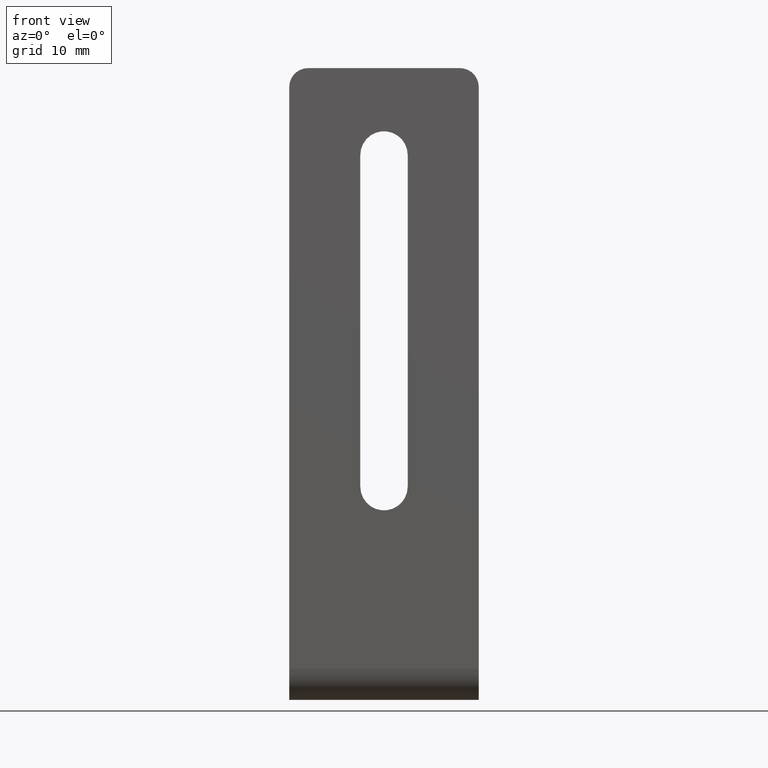
[diagram: clean part render]
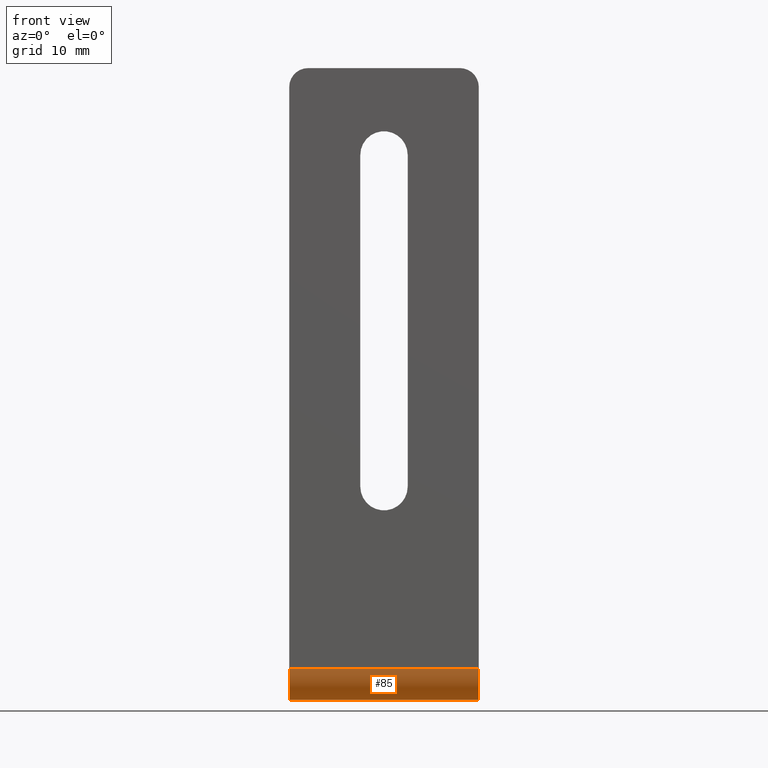
[diagram: same view with one face highlighted and labeled with its STEP entity id]
A machine part, front view. The second image highlights one B-rep face of the part: STEP entity #85.
In plain terms, the highlighted cylindrical surface (edge-blend (fillet) strip) has radius 5 mm, axis along (1, -0, 0).
Its self-contained STEP definition (entity closure, byte-faithful):
#44=CARTESIAN_POINT('',(-15.0,-31.999999999998181,5.000000000000002));
#45=DIRECTION('',(1.0,-6.123234E-017,3.749399E-033));
#46=DIRECTION('',(6.123234E-017,1.0,-6.123234E-017));
#47=AXIS2_PLACEMENT_3D('',#44,#45,#46);
#48=CYLINDRICAL_SURFACE('',#47,5.0);
#49=CARTESIAN_POINT('',(-15.0,-36.999999999998181,5.000000000000003));
#50=VERTEX_POINT('',#49);
#51=CARTESIAN_POINT('',(-15.0,-31.999999999998181,1.959435E-015));
#52=VERTEX_POINT('',#51);
#53=CARTESIAN_POINT('',(-15.0,-31.999999999998181,5.000000000000002));
#54=DIRECTION('',(1.0,-6.123234E-017,3.749399E-033));
#55=DIRECTION('',(6.123234E-017,1.0,-6.123234E-017));
#56=AXIS2_PLACEMENT_3D('',#53,#54,#55);
#57=CIRCLE('',#56,5.0);
#58=EDGE_CURVE('',#50,#52,#57,.T.);
#59=ORIENTED_EDGE('',*,*,#58,.T.);
#60=CARTESIAN_POINT('',(15.0,-31.999999999998181,1.959435E-015));
#61=VERTEX_POINT('',#60);
#62=CARTESIAN_POINT('',(-15.0,-31.999999999998181,1.959435E-015));
#63=DIRECTION('',(1.0,0.0,0.0));
#64=VECTOR('',#63,30.0);
#65=LINE('',#62,#64);
#66=EDGE_CURVE('',#52,#61,#65,.T.);
#67=ORIENTED_EDGE('',*,*,#66,.T.);
#68=CARTESIAN_POINT('',(15.0,-36.999999999998181,5.000000000000003));
#69=VERTEX_POINT('',#68);
#70=CARTESIAN_POINT('',(15.0,-31.999999999998181,5.000000000000002));
#71=DIRECTION('',(1.0,-6.123234E-017,3.749399E-033));
#72=DIRECTION('',(6.123234E-017,1.0,-6.123234E-017));
#73=AXIS2_PLACEMENT_3D('',#70,#71,#72);
#74=CIRCLE('',#73,5.0);
#75=EDGE_CURVE('',#69,#61,#74,.T.);
#76=ORIENTED_EDGE('',*,*,#75,.F.);
#77=CARTESIAN_POINT('',(-15.0,-36.999999999998181,5.000000000000003));
#78=DIRECTION('',(1.0,0.0,0.0));
#79=VECTOR('',#78,30.0);
#80=LINE('',#77,#79);
#81=EDGE_CURVE('',#50,#69,#80,.T.);
#82=ORIENTED_EDGE('',*,*,#81,.F.);
#83=EDGE_LOOP('',(#59,#67,#76,#82));
#84=FACE_OUTER_BOUND('',#83,.T.);
#85=ADVANCED_FACE('',(#84),#48,.T.);